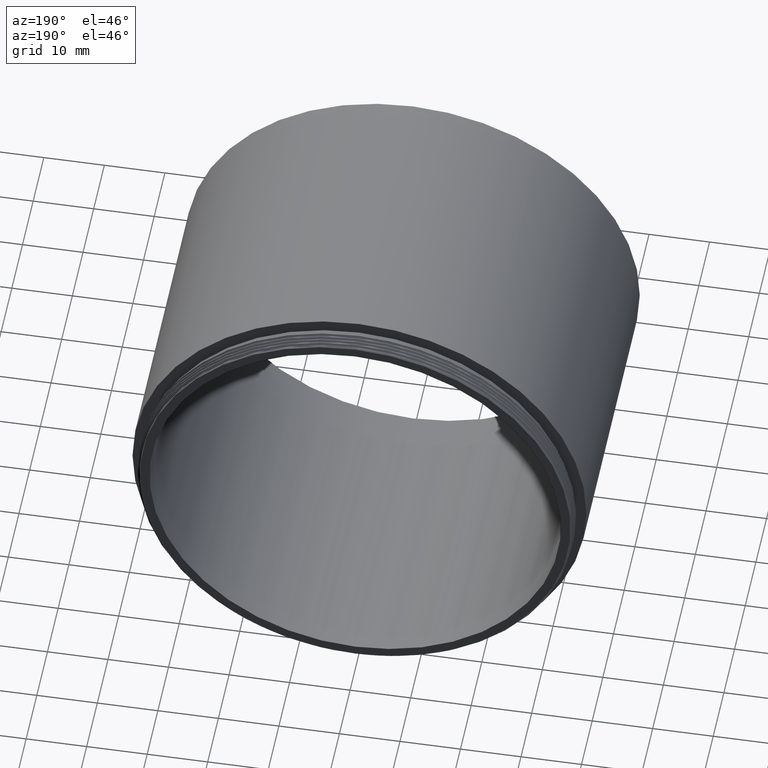
[diagram: clean part render]
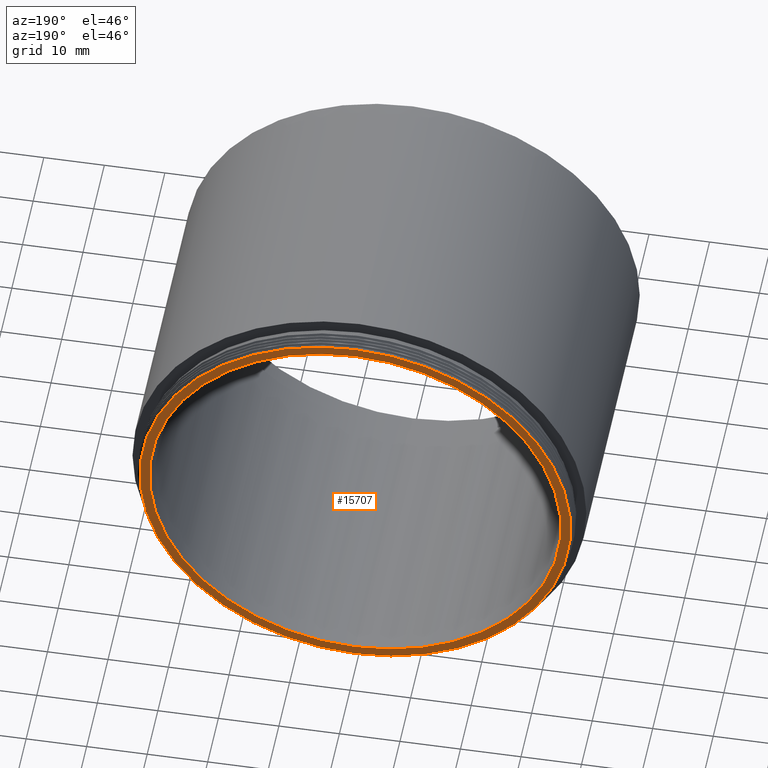
[diagram: same view with one face highlighted and labeled with its STEP entity id]
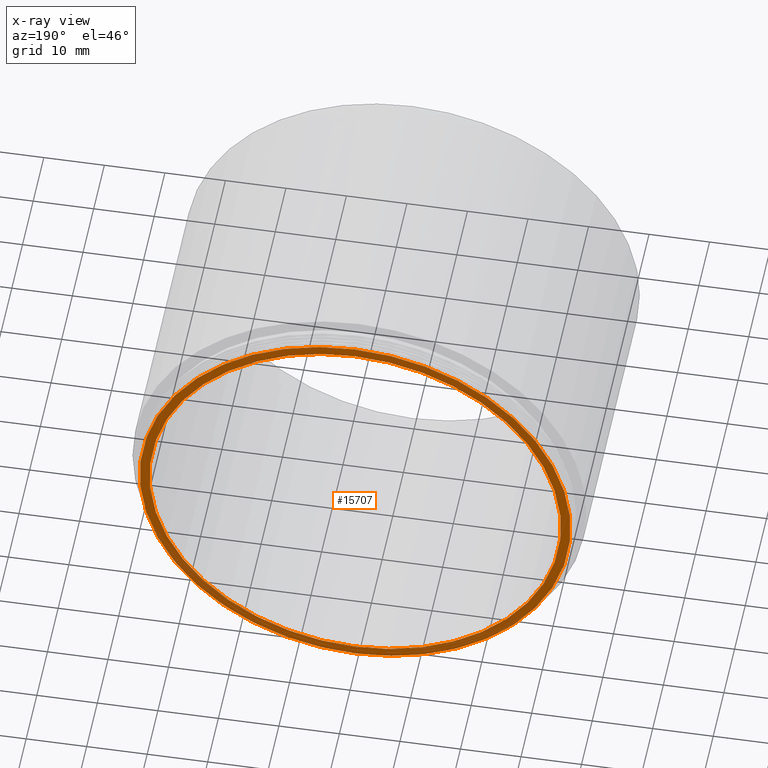
[diagram: x-ray of the same camera — body ghosted, the highlighted face saturated]
A machine part, auxiliary view. The second image highlights one B-rep face of the part: STEP entity #15707.
The next image is the same camera in x-ray: the body ghosted, the highlighted face saturated — about 0% of this face is hidden behind the body in this view.
In plain terms, the highlighted planar face has unit normal (0, -1, -0).
Its self-contained STEP definition (entity closure, byte-faithful):
#1263 = EDGE_LOOP ( 'NONE', ( #10528, #11448 ) ) ;
#1377 = AXIS2_PLACEMENT_3D ( 'NONE', #3494, #9910, #8653 ) ;
#1963 = DIRECTION ( 'NONE',  ( 0.0000000000000000000, 0.0000000000000000000, -1.000000000000000000 ) ) ;
#1978 = VERTEX_POINT ( 'NONE', #5425 ) ;
#2082 = CARTESIAN_POINT ( 'NONE',  ( -35.59999999999863007, 55.20194186206709475, 0.0000000000000000000 ) ) ;
#2406 = CIRCLE ( 'NONE', #2950, 35.59999999999863007 ) ;
#2626 = ORIENTED_EDGE ( 'NONE', *, *, #3557, .F. ) ;
#2839 = VERTEX_POINT ( 'NONE', #11560 ) ;
#2950 = AXIS2_PLACEMENT_3D ( 'NONE', #14319, #15675, #4104 ) ;
#3235 = CIRCLE ( 'NONE', #4592, 34.00000000000002842 ) ;
#3494 = CARTESIAN_POINT ( 'NONE',  ( 0.0000000000000000000, 55.20194186206709475, 0.0000000000000000000 ) ) ;
#3557 = EDGE_CURVE ( 'NONE', #2839, #8787, #2406, .T. ) ;
#3732 = DIRECTION ( 'NONE',  ( -0.0000000000000000000, -1.000000000000000000, -0.0000000000000000000 ) ) ;
#4104 = DIRECTION ( 'NONE',  ( 0.0000000000000000000, 0.0000000000000000000, -1.000000000000000000 ) ) ;
#4344 = AXIS2_PLACEMENT_3D ( 'NONE', #6122, #3732, #16415 ) ;
#4592 = AXIS2_PLACEMENT_3D ( 'NONE', #7456, #9653, #1963 ) ;
#5425 = CARTESIAN_POINT ( 'NONE',  ( 4.163799117101004504E-15, 55.20194186206709475, 34.00000000000002842 ) ) ;
#5887 = ORIENTED_EDGE ( 'NONE', *, *, #11851, .F. ) ;
#6075 = FACE_BOUND ( 'NONE', #1263, .T. ) ;
#6122 = CARTESIAN_POINT ( 'NONE',  ( 0.0000000000000000000, 55.20194186206709475, 0.0000000000000000000 ) ) ;
#7077 = DIRECTION ( 'NONE',  ( 0.0000000000000000000, -1.000000000000000000, -0.0000000000000000000 ) ) ;
#7456 = CARTESIAN_POINT ( 'NONE',  ( 0.0000000000000000000, 55.20194186206709475, 0.0000000000000000000 ) ) ;
#7638 = CARTESIAN_POINT ( 'NONE',  ( 0.0000000000000000000, 55.20194186206709475, -35.59999999999863007 ) ) ;
#7968 = VERTEX_POINT ( 'NONE', #16503 ) ;
#8653 = DIRECTION ( 'NONE',  ( 0.0000000000000000000, 0.0000000000000000000, -1.000000000000000000 ) ) ;
#8787 = VERTEX_POINT ( 'NONE', #7638 ) ;
#9653 = DIRECTION ( 'NONE',  ( -0.0000000000000000000, -1.000000000000000000, -0.0000000000000000000 ) ) ;
#9910 = DIRECTION ( 'NONE',  ( -0.0000000000000000000, -1.000000000000000000, -0.0000000000000000000 ) ) ;
#10528 = ORIENTED_EDGE ( 'NONE', *, *, #13365, .T. ) ;
#11448 = ORIENTED_EDGE ( 'NONE', *, *, #11797, .T. ) ;
#11560 = CARTESIAN_POINT ( 'NONE',  ( 4.384235540947440522E-15, 55.20194186206709475, 35.59999999999863007 ) ) ;
#11797 = EDGE_CURVE ( 'NONE', #1978, #7968, #15398, .T. ) ;
#11851 = EDGE_CURVE ( 'NONE', #8787, #2839, #14588, .T. ) ;
#13218 = AXIS2_PLACEMENT_3D ( 'NONE', #2082, #7077, #14922 ) ;
#13365 = EDGE_CURVE ( 'NONE', #7968, #1978, #3235, .T. ) ;
#13658 = FACE_OUTER_BOUND ( 'NONE', #13707, .T. ) ;
#13707 = EDGE_LOOP ( 'NONE', ( #5887, #2626 ) ) ;
#14319 = CARTESIAN_POINT ( 'NONE',  ( 0.0000000000000000000, 55.20194186206709475, 0.0000000000000000000 ) ) ;
#14588 = CIRCLE ( 'NONE', #4344, 35.59999999999863007 ) ;
#14922 = DIRECTION ( 'NONE',  ( 0.0000000000000000000, 0.0000000000000000000, -1.000000000000000000 ) ) ;
#15398 = CIRCLE ( 'NONE', #1377, 34.00000000000002842 ) ;
#15675 = DIRECTION ( 'NONE',  ( -0.0000000000000000000, -1.000000000000000000, -0.0000000000000000000 ) ) ;
#15707 = ADVANCED_FACE ( 'NONE', ( #13658, #6075 ), #16362, .F. ) ;
#16362 = PLANE ( 'NONE',  #13218 ) ;
#16415 = DIRECTION ( 'NONE',  ( 0.0000000000000000000, 0.0000000000000000000, -1.000000000000000000 ) ) ;
#16503 = CARTESIAN_POINT ( 'NONE',  ( 0.0000000000000000000, 55.20194186206709475, -34.00000000000002842 ) ) ;